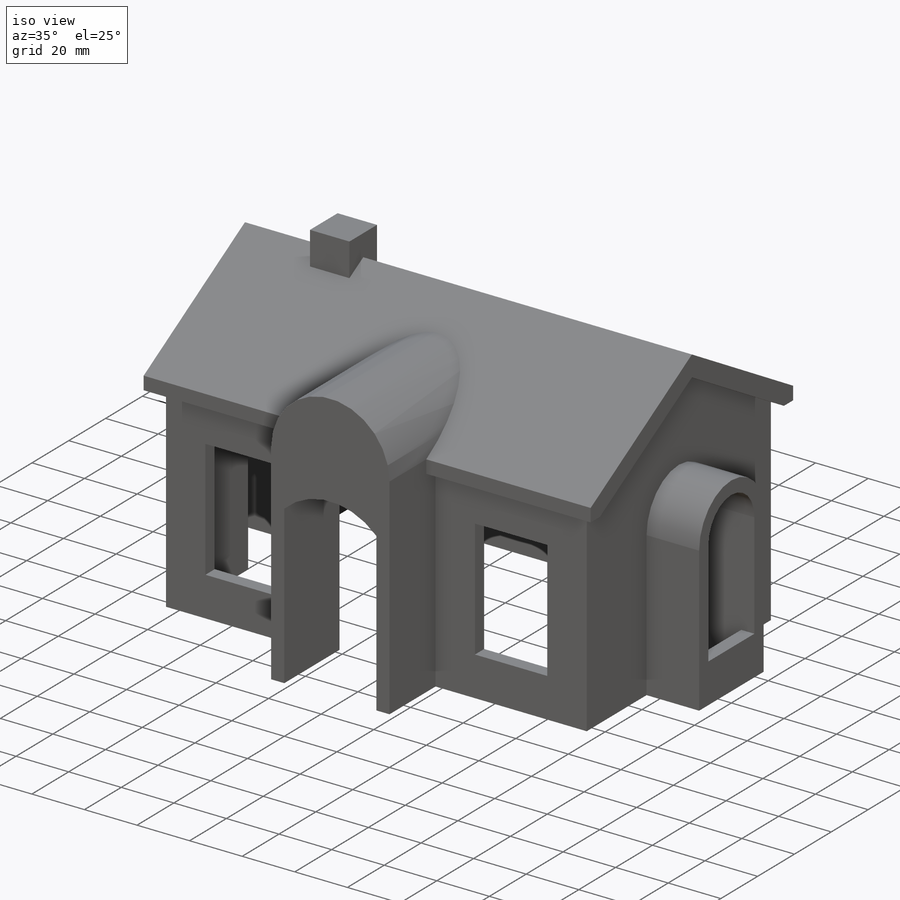
[diagram: iso view]
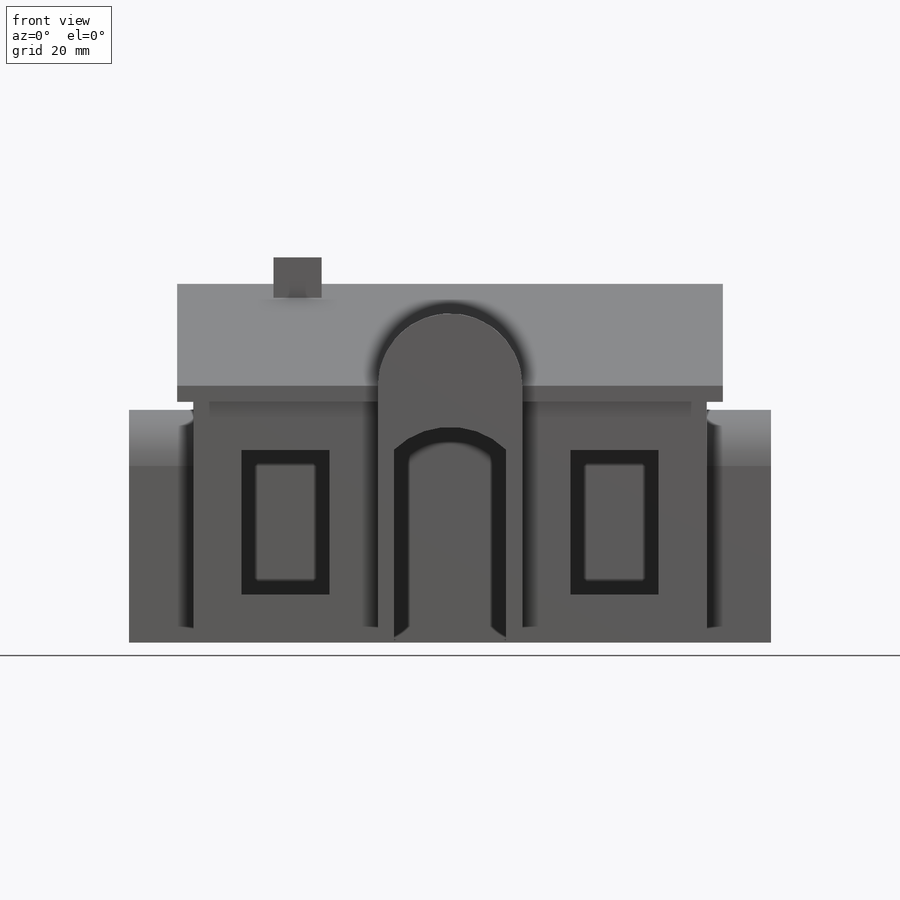
[diagram: front view]
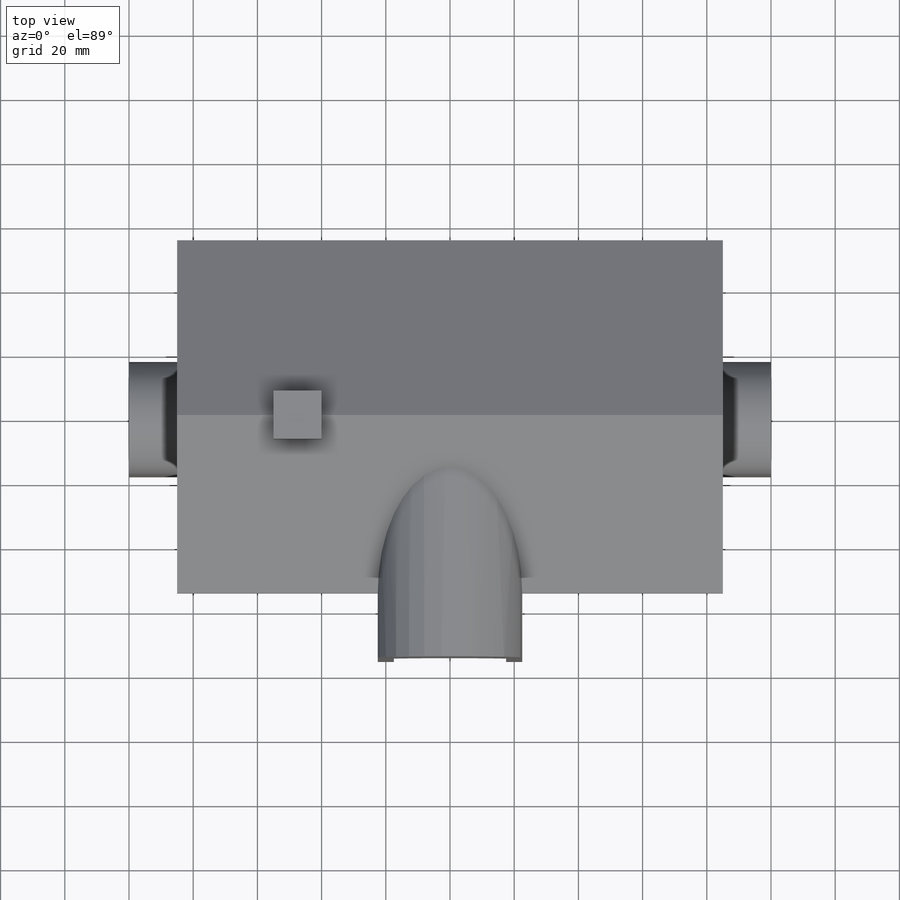
[diagram: top view]
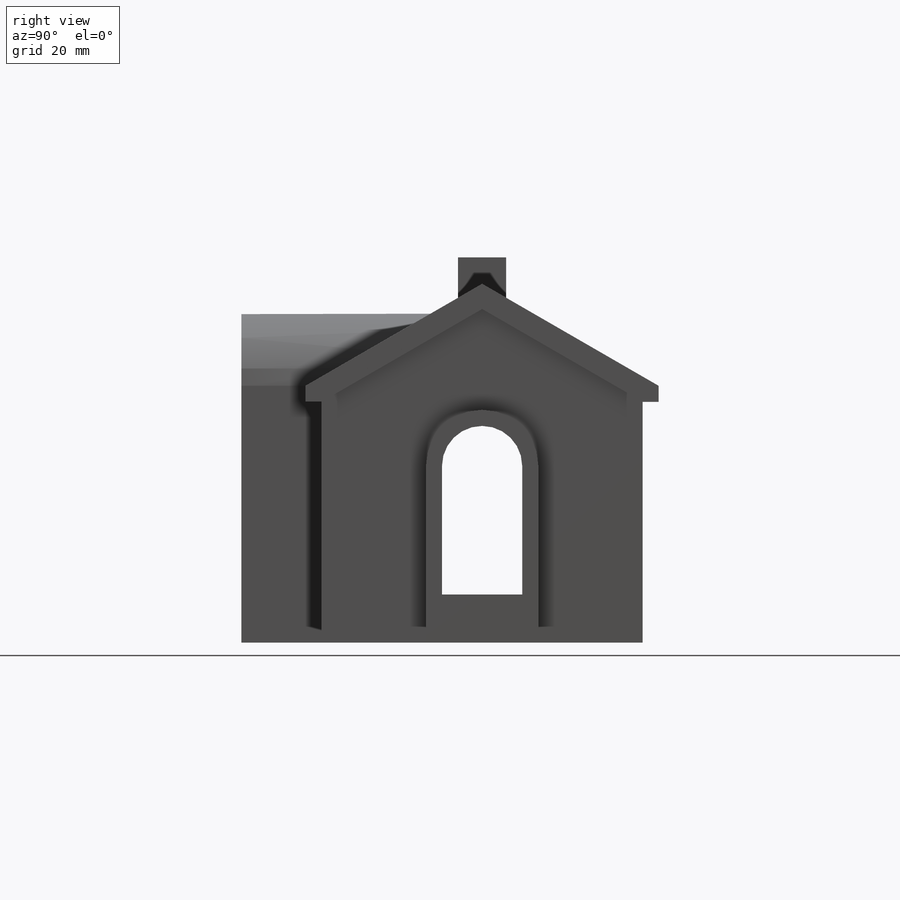
[diagram: right view]
SOLIDWORKS PART (.sldprt)
format: sldprt  version: not decoded by parser v0  size: 262,144 bytes
history: native  units: mm
features: sketch x7, extrude x5, cut_extrude x2, material x1, shell x1 (+15 scaffold rows collapsed)
feature tree (31):
  scaffold x15  (default folders/planes/origin — collapsed)
  material  "Material <not specified>"
  sketch  "Sketch1"  dims[c1.D1=100.0mm c1.D2=75.0mm c1.D3=75.0mm c2.D3=120.0deg]
  extrude  "Body"  Depth=160mm
  sketch  "Sketch"  dims[D1=5.0mm D2=5.0mm D3=5.0mm D4=5.0mm]
  extrude  "Roof"  Depth=170mm
  sketch  "Sketch3"  dims[D1=55.0mm D2=35.0mm]
  extrude  "Side Window"  Depth=20mm
  sketch  "Sketch5"  dims[D1=45.0mm]
  extrude  "Entrance"  Depth=25mm
  sketch  "Sketch6"  dims[D1=15.0mm D2=15.0mm D3=125.0mm]
  extrude  "Chimney"  Depth=120mm
  shell  "Shell"  Thickness=5mm
  sketch  "Sketch7"  dims[D6=25.0mm D1=45.0mm D2=15.0mm D3=15.0mm D4=5.0mm D5=15.0mm]
  cut_extrude  "Front Opes"  [1 undecoded]
  sketch  "Sketch9"  dims[c1.D1=~23.23832mm c2.D1=90.0deg c3.D1=25.0mm c3.D2=15.0mm]
  cut_extrude  "Side Opes"  [1 undecoded]
decode coverage: 13 of 15 modeling features carry decoded parameters
note: ~ marks probable driven/reference dimensions
note: 2 parameter values undecoded
note: suppression state not decoded; provenance and decode notes live in map.json
